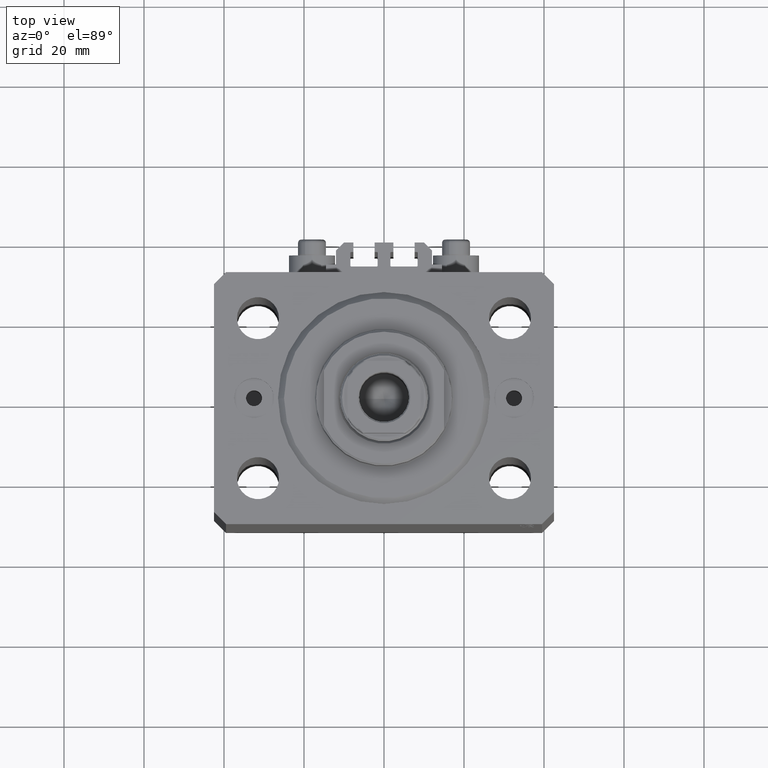
[diagram: clean part render]
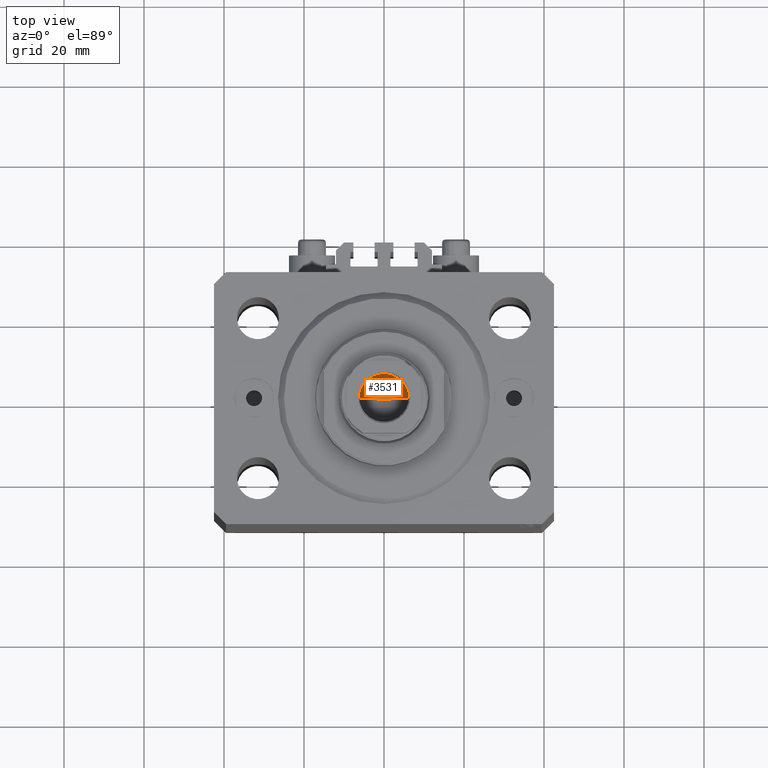
[diagram: same view with one face highlighted and labeled with its STEP entity id]
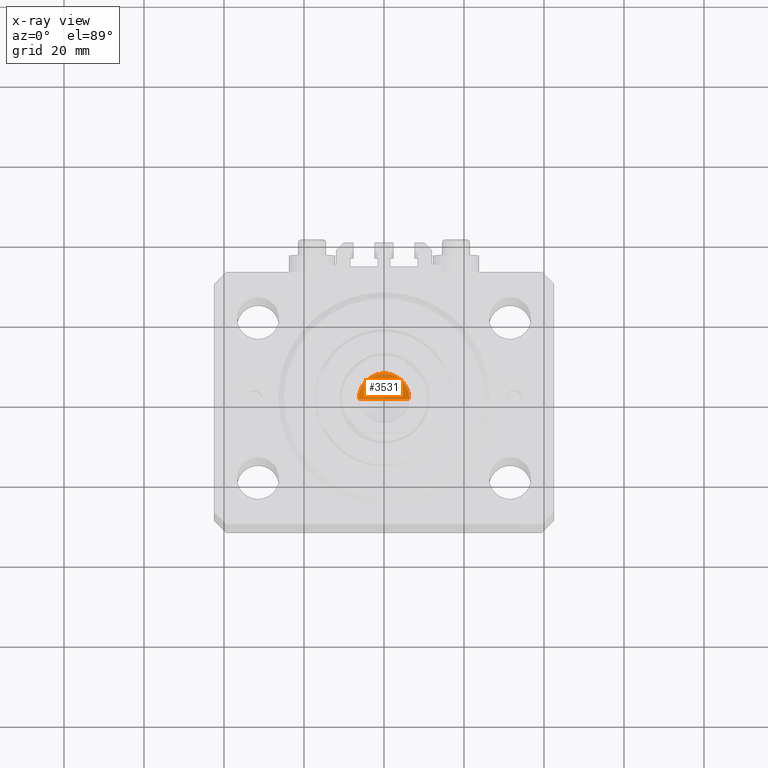
[diagram: x-ray of the same camera — body ghosted, the highlighted face saturated]
A machine part, top view. The second image highlights one B-rep face of the part: STEP entity #3531.
The next image is the same camera in x-ray: the body ghosted, the highlighted face saturated — about 0% of this face is hidden behind the body in this view.
In plain terms, the highlighted conical surface has half-angle 59 deg.
Its self-contained STEP definition (entity closure, byte-faithful):
#618 = CARTESIAN_POINT ( 'NONE',  ( 0.000000000000000000, 0.000000000000000000, 108.6000000000000085 ) ) ;
#1787 = CARTESIAN_POINT ( 'NONE',  ( -7.434177670704979810E-15, 0.000000000000000000, 104.8446211310777443 ) ) ;
#3531 = ADVANCED_FACE ( 'NONE', ( #28986 ), #7709, .F. ) ;
#4865 = DIRECTION ( 'NONE',  ( -0.8571673007021115565, 1.049727191138617710E-16, 0.5150380749100554878 ) ) ;
#5653 = EDGE_LOOP ( 'NONE', ( #21235, #41106, #20533 ) ) ;
#5787 = AXIS2_PLACEMENT_3D ( 'NONE', #618, #7754, #29747 ) ;
#7709 = CONICAL_SURFACE ( 'NONE', #22223, 6.249999999999993783, 1.029744258676652979 ) ;
#7754 = DIRECTION ( 'NONE',  ( -0.000000000000000000, -0.000000000000000000, 1.000000000000000000 ) ) ;
#10816 = EDGE_CURVE ( 'NONE', #30407, #42146, #41890, .T. ) ;
#11273 = DIRECTION ( 'NONE',  ( -0.000000000000000000, -0.000000000000000000, 1.000000000000000000 ) ) ;
#11354 = VECTOR ( 'NONE', #4865, 1000.000000000000000 ) ;
#12365 = VECTOR ( 'NONE', #37837, 1000.000000000000000 ) ;
#15127 = EDGE_CURVE ( 'NONE', #30407, #21722, #45455, .T. ) ;
#20533 = ORIENTED_EDGE ( 'NONE', *, *, #33540, .T. ) ;
#21235 = ORIENTED_EDGE ( 'NONE', *, *, #15127, .F. ) ;
#21722 = VERTEX_POINT ( 'NONE', #45670 ) ;
#22223 = AXIS2_PLACEMENT_3D ( 'NONE', #43535, #11273, #25392 ) ;
#22561 = CARTESIAN_POINT ( 'NONE',  ( 6.249999999999993783, 0.000000000000000000, 108.6000000000000085 ) ) ;
#25392 = DIRECTION ( 'NONE',  ( 1.000000000000000000, 0.000000000000000000, 0.000000000000000000 ) ) ;
#28986 = FACE_OUTER_BOUND ( 'NONE', #5653, .T. ) ;
#29747 = DIRECTION ( 'NONE',  ( 1.000000000000000000, 0.000000000000000000, 0.000000000000000000 ) ) ;
#30407 = VERTEX_POINT ( 'NONE', #1787 ) ;
#31941 = CARTESIAN_POINT ( 'NONE',  ( 6.249999999999993783, 0.000000000000000000, 108.6000000000000085 ) ) ;
#32484 = CIRCLE ( 'NONE', #5787, 6.249999999999993783 ) ;
#33540 = EDGE_CURVE ( 'NONE', #42146, #21722, #32484, .T. ) ;
#37837 = DIRECTION ( 'NONE',  ( 0.8571673007021115565, 0.000000000000000000, 0.5150380749100554878 ) ) ;
#41106 = ORIENTED_EDGE ( 'NONE', *, *, #10816, .T. ) ;
#41890 = LINE ( 'NONE', #22561, #12365 ) ;
#42146 = VERTEX_POINT ( 'NONE', #31941 ) ;
#43535 = CARTESIAN_POINT ( 'NONE',  ( 0.000000000000000000, 0.000000000000000000, 108.6000000000000085 ) ) ;
#45455 = LINE ( 'NONE', #45700, #11354 ) ;
#45670 = CARTESIAN_POINT ( 'NONE',  ( -6.249999999999993783, 7.654042494670949718E-16, 108.6000000000000085 ) ) ;
#45700 = CARTESIAN_POINT ( 'NONE',  ( -6.249999999999993783, 7.654042494670949718E-16, 108.6000000000000085 ) ) ;